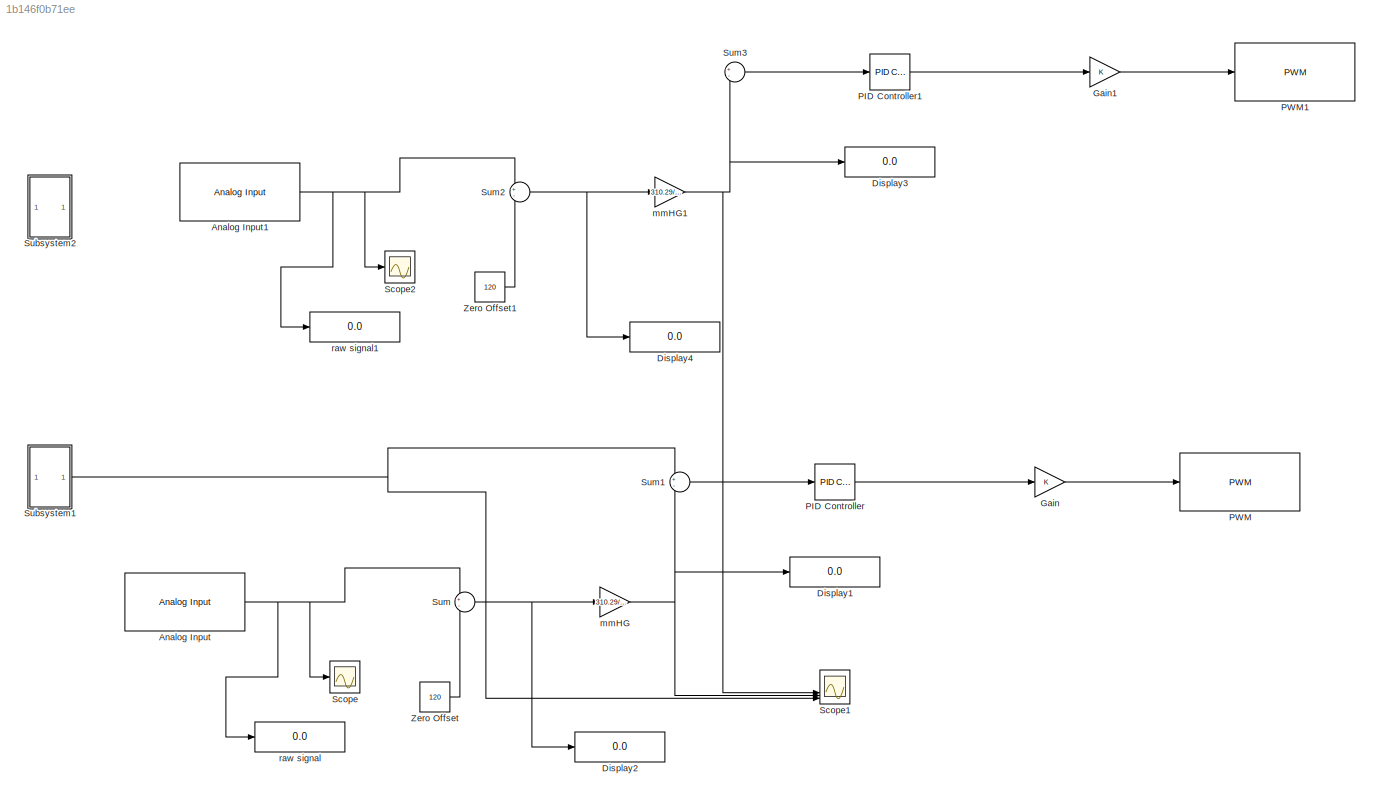
MODEL slx_1b146f0b71ee
KIND model
CONFIG AbsTol = auto
CONFIG EnableMultiTasking = on
CONFIG FixedStep = auto
CONFIG MaxStep = auto
CONFIG MinStep = auto
CONFIG RelTol = 1e-3
CONFIG SampleTimeConstraint = Unconstrained
CONFIG SolverName = FixedStepAuto
CONFIG StartTime = 0.0
CONFIG StopTime = inf
BLOCK [Reference] Analog Input  REF=arduinolib/Analog Input
  SourceBlock = arduinolib/Analog Input
  SourceType = Arduino Analog Input
BLOCK [Reference] Analog Input1  REF=arduinolib/Analog Input
  Commented = on
  SourceBlock = arduinolib/Analog Input
  SourceType = Arduino Analog Input
BLOCK [Display] Display1
  Decimation = 1
BLOCK [Display] Display2
  Decimation = 1
BLOCK [Display] Display3
  Commented = on
  Decimation = 1
BLOCK [Display] Display4
  Commented = on
  Decimation = 1
BLOCK [Gain] Gain
BLOCK [Gain] Gain1
  Commented = on
BLOCK [Reference] PID Controller  REF=slpidlib/PID Controller
  SourceBlock = slpidlib/PID Controller
  SourceType = PID 1dof
BLOCK [Reference] PID Controller1  REF=slpidlib/PID Controller
  Commented = on
  SourceBlock = slpidlib/PID Controller
  SourceType = PID 1dof
BLOCK [Reference] PWM  REF=arduinolib/PWM
  SourceBlock = arduinolib/PWM
  SourceType = Arduino PWM
BLOCK [Reference] PWM1  REF=arduinolib/PWM
  Commented = on
  SourceBlock = arduinolib/PWM
  SourceType = Arduino PWM
BLOCK [Scope] Scope
  Floating = off
  NumInputPorts = 1
  ScopeSpecificationString = Simulink.scopes.TimeScopeBlockCfg('CurrentConfiguration', extmgr.ConfigurationSet(extmgr.Configuration('Core','General UI',true),extmgr.Configuration('Core','Source UI',true),extmgr.Configuration('Sources','WiredSimulink',true),extmgr.Configuration('Visuals','Time Domain',true,'SerializedDisplays',{struct('MinYLimReal','-100','MaxYLimReal','1050','YLabelReal','','MinYLimMag','0.00000','MaxYLimMag'...<+1368ch>
BLOCK [Scope] Scope1
  Floating = off
  NumInputPorts = 5
  ScopeSpecificationString = Simulink.scopes.TimeScopeBlockCfg('CurrentConfiguration', extmgr.ConfigurationSet(extmgr.Configuration('Core','General UI',true),extmgr.Configuration('Core','Source UI',true),extmgr.Configuration('Sources','WiredSimulink',true,'DataLoggingVariableName','ScopeData1'),extmgr.Configuration('Visuals','Time Domain',true,'SerializedDisplays',{struct('MinYLimReal','-10','MaxYLimReal','200','YLabelReal','...<+1568ch>
BLOCK [Scope] Scope2
  Commented = on
  Floating = off
  NumInputPorts = 1
  ScopeSpecificationString = Simulink.scopes.TimeScopeBlockCfg('CurrentConfiguration', extmgr.ConfigurationSet(extmgr.Configuration('Core','General UI',true),extmgr.Configuration('Core','Source UI',true),extmgr.Configuration('Sources','WiredSimulink',true,'DataLoggingVariableName','ScopeData1'),extmgr.Configuration('Visuals','Time Domain',true,'SerializedDisplays',{struct('MinYLimReal','-100','MaxYLimReal','1050','YLabelReal'...<+1407ch>
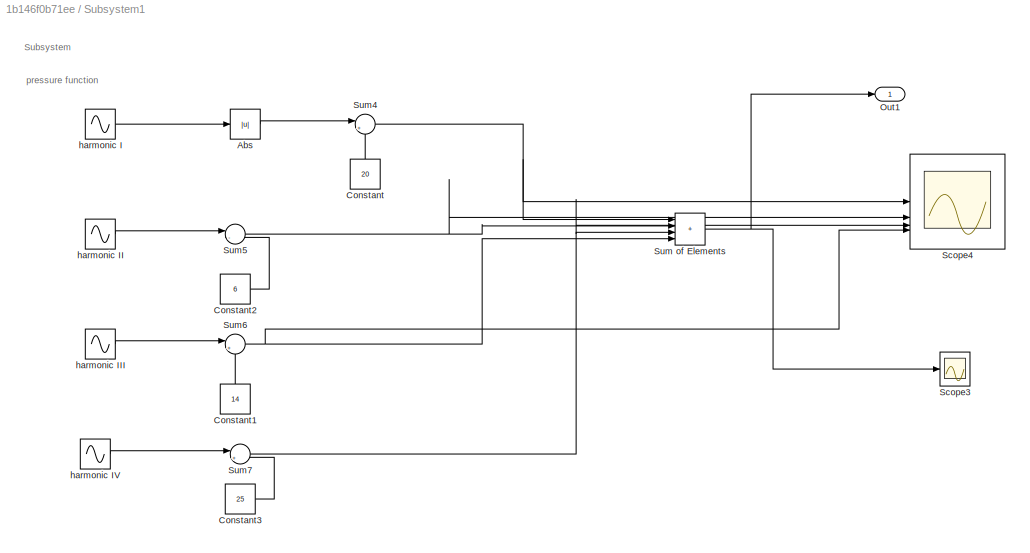
BLOCK [SubSystem] Subsystem1
BLOCK [Abs] Subsystem1/Abs
  SaturateOnIntegerOverflow = off
BLOCK [Constant] Subsystem1/Constant
  NameLocation = right
  Value = 20
BLOCK [Constant] Subsystem1/Constant1
  NameLocation = right
  Value = 14
BLOCK [Constant] Subsystem1/Constant2
  Value = 6
BLOCK [Constant] Subsystem1/Constant3
  Value = 25
BLOCK [Outport] Subsystem1/Out1
BLOCK [Scope] Subsystem1/Scope3
  Floating = off
  NumInputPorts = 1
  ScopeSpecificationString = Simulink.scopes.TimeScopeBlockCfg('CurrentConfiguration', extmgr.ConfigurationSet(extmgr.Configuration('Core','General UI',true),extmgr.Configuration('Core','Source UI',true),extmgr.Configuration('Sources','WiredSimulink',true,'DataLoggingVariableName','ScopeData1'),extmgr.Configuration('Visuals','Time Domain',true,'SerializedDisplays',{struct('MinYLimReal','57.25598','MaxYLimReal','93.63128','YLa...<+1454ch>
BLOCK [Scope] Subsystem1/Scope4
  Floating = off
  NumInputPorts = 4
  ScopeSpecificationString = Simulink.scopes.TimeScopeBlockCfg('CurrentConfiguration', extmgr.ConfigurationSet(extmgr.Configuration('Core','General UI',true),extmgr.Configuration('Core','Source UI',true),extmgr.Configuration('Sources','WiredSimulink',true,'DataLoggingVariableName','ScopeData2'),extmgr.Configuration('Visuals','Time Domain',true,'SerializedDisplays',{struct('MinYLimReal','-197.46527','MaxYLimReal','237.46714','...<+1490ch>
BLOCK [Sum] Subsystem1/Sum of Elements
  IconShape = rectangular
  Inputs = ++++
BLOCK [Sum] Subsystem1/Sum4
  Inputs = |++
BLOCK [Sum] Subsystem1/Sum5
  Inputs = |-+
BLOCK [Sum] Subsystem1/Sum6
  Inputs = |++
BLOCK [Sum] Subsystem1/Sum7
  Inputs = |++
BLOCK [Sin] Subsystem1/harmonic I
  Amplitude = 17
  Frequency = 3
  SampleTime = 0
  Samples = 0.01
BLOCK [Sin] Subsystem1/harmonic II
  Amplitude = 25
  Frequency = 6
  SampleTime = 0
BLOCK [Sin] Subsystem1/harmonic III
  Amplitude = 19
  Frequency = 6
  SampleTime = 0
BLOCK [Sin] Subsystem1/harmonic IV
  Amplitude = 20
  Frequency = 6
  Phase = pi/2
  SampleTime = 0
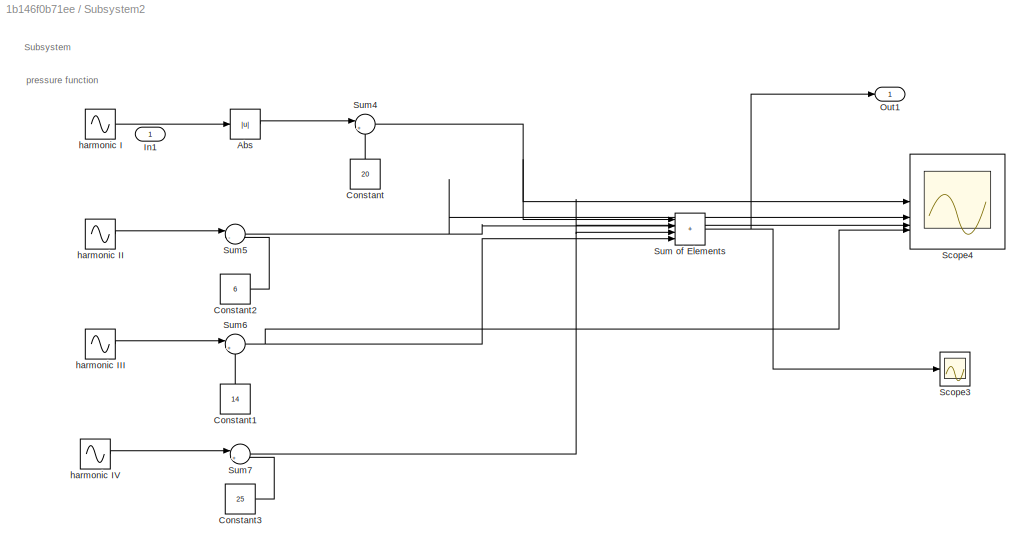
BLOCK [SubSystem] Subsystem2
  Commented = on
  PortSchema = {"entries":[{"content":{"sides":[{"content":{"connectorIds":[]},"type":"ConnectorPlacement.EquallySpacedRectSide","uuid":"ab7dab5f-f2a7-4876-b378-94c43efc8b1c"},{"content":{"connectorIds":["Out1"],"side":"RIGHT"},"type":"ConnectorPlacement.EquallySpacedRectSide","uuid":"1510920c-72ba-4a1a-b332-ed7ffbc7a020"},{"content":{"connectorIds":["In1"],"side":"TOP"},"type":"ConnectorPlacement.EquallySpacedR...<+240ch>
BLOCK [Abs] Subsystem2/Abs
  SaturateOnIntegerOverflow = off
BLOCK [Constant] Subsystem2/Constant
  NameLocation = right
  Value = 20
BLOCK [Constant] Subsystem2/Constant1
  NameLocation = right
  Value = 14
BLOCK [Constant] Subsystem2/Constant2
  Value = 6
BLOCK [Constant] Subsystem2/Constant3
  Value = 25
BLOCK [Inport] Subsystem2/In1
BLOCK [Outport] Subsystem2/Out1
BLOCK [Scope] Subsystem2/Scope3
  Floating = off
  NumInputPorts = 1
  ScopeSpecificationString = Simulink.scopes.TimeScopeBlockCfg('CurrentConfiguration', extmgr.ConfigurationSet(extmgr.Configuration('Core','General UI',true),extmgr.Configuration('Core','Source UI',true),extmgr.Configuration('Sources','WiredSimulink',true,'DataLoggingVariableName','ScopeData1'),extmgr.Configuration('Visuals','Time Domain',true,'SerializedDisplays',{struct('MinYLimReal','57.25598','MaxYLimReal','93.63128','YLa...<+1454ch>
BLOCK [Scope] Subsystem2/Scope4
  Floating = off
  NumInputPorts = 4
  ScopeSpecificationString = Simulink.scopes.TimeScopeBlockCfg('CurrentConfiguration', extmgr.ConfigurationSet(extmgr.Configuration('Core','General UI',true),extmgr.Configuration('Core','Source UI',true),extmgr.Configuration('Sources','WiredSimulink',true,'DataLoggingVariableName','ScopeData2'),extmgr.Configuration('Visuals','Time Domain',true,'SerializedDisplays',{struct('MinYLimReal','-197.46527','MaxYLimReal','237.46714','...<+1490ch>
BLOCK [Sum] Subsystem2/Sum of Elements
  IconShape = rectangular
  Inputs = ++++
BLOCK [Sum] Subsystem2/Sum4
  Inputs = |++
BLOCK [Sum] Subsystem2/Sum5
  Inputs = |-+
BLOCK [Sum] Subsystem2/Sum6
  Inputs = |++
BLOCK [Sum] Subsystem2/Sum7
  Inputs = |++
BLOCK [Sin] Subsystem2/harmonic I
  Amplitude = 17
  Frequency = 3
  SampleTime = 0
  Samples = 0.01
BLOCK [Sin] Subsystem2/harmonic II
  Amplitude = 25
  Frequency = 6
  SampleTime = 0
BLOCK [Sin] Subsystem2/harmonic III
  Amplitude = 19
  Frequency = 6
  SampleTime = 0
BLOCK [Sin] Subsystem2/harmonic IV
  Amplitude = 20
  Frequency = 6
  Phase = pi/2
  SampleTime = 0
BLOCK [Sum] Sum
  Inputs = +-
BLOCK [Sum] Sum1
  Inputs = +-
BLOCK [Sum] Sum2
  Commented = on
  Inputs = +-
BLOCK [Sum] Sum3
  Commented = on
  Inputs = +-
BLOCK [Constant] Zero Offset
  Value = 120
BLOCK [Constant] Zero Offset1
  Commented = on
  Value = 120
BLOCK [Gain] mmHG
  Gain = 310.29/905
BLOCK [Gain] mmHG1
  Commented = on
  Gain = 310.29/905
BLOCK [Display] raw signal
  Decimation = 1
BLOCK [Display] raw signal1
  Commented = on
  Decimation = 1
ANNOTATION Subsystem1: Subsystem
ANNOTATION Subsystem1: pressure function
ANNOTATION Subsystem2: Subsystem
ANNOTATION Subsystem2: pressure function
NET Analog Input1:1 -> Scope2:1, Sum2:1, raw signal1:1
NET Analog Input:1 -> Scope:1, Sum:1, raw signal:1
LINE Gain1:1 -> PWM1:1
LINE Gain:1 -> PWM:1
LINE PID Controller1:1 -> Gain1:1
LINE PID Controller:1 -> Gain:1
LINE Subsystem1/Abs:1 -> Subsystem1/Sum4:1
LINE Subsystem1/Constant1:1 -> Subsystem1/Sum6:2
LINE Subsystem1/Constant2:1 -> Subsystem1/Sum5:2
LINE Subsystem1/Constant3:1 -> Subsystem1/Sum7:2
LINE Subsystem1/Constant:1 -> Subsystem1/Sum4:2
NET Subsystem1/Sum of Elements:1 -> Subsystem1/Out1:1, Subsystem1/Scope3:1
NET Subsystem1/Sum4:1 -> Subsystem1/Scope4:1, Subsystem1/Sum of Elements:1
NET Subsystem1/Sum5:1 -> Subsystem1/Scope4:2, Subsystem1/Sum of Elements:2
NET Subsystem1/Sum6:1 -> Subsystem1/Scope4:4, Subsystem1/Sum of Elements:4
NET Subsystem1/Sum7:1 -> Subsystem1/Scope4:3, Subsystem1/Sum of Elements:3
LINE Subsystem1/harmonic I:1 -> Subsystem1/Abs:1
LINE Subsystem1/harmonic II:1 -> Subsystem1/Sum5:1
LINE Subsystem1/harmonic III:1 -> Subsystem1/Sum6:1
LINE Subsystem1/harmonic IV:1 -> Subsystem1/Sum7:1
NET Subsystem1:1 -> Scope1:5, Sum1:1
LINE Subsystem2/Abs:1 -> Subsystem2/Sum4:1
LINE Subsystem2/Constant1:1 -> Subsystem2/Sum6:2
LINE Subsystem2/Constant2:1 -> Subsystem2/Sum5:2
LINE Subsystem2/Constant3:1 -> Subsystem2/Sum7:2
LINE Subsystem2/Constant:1 -> Subsystem2/Sum4:2
NET Subsystem2/Sum of Elements:1 -> Subsystem2/Out1:1, Subsystem2/Scope3:1
NET Subsystem2/Sum4:1 -> Subsystem2/Scope4:1, Subsystem2/Sum of Elements:1
NET Subsystem2/Sum5:1 -> Subsystem2/Scope4:2, Subsystem2/Sum of Elements:2
NET Subsystem2/Sum6:1 -> Subsystem2/Scope4:4, Subsystem2/Sum of Elements:4
NET Subsystem2/Sum7:1 -> Subsystem2/Scope4:3, Subsystem2/Sum of Elements:3
LINE Subsystem2/harmonic I:1 -> Subsystem2/Abs:1
LINE Subsystem2/harmonic II:1 -> Subsystem2/Sum5:1
LINE Subsystem2/harmonic III:1 -> Subsystem2/Sum6:1
LINE Subsystem2/harmonic IV:1 -> Subsystem2/Sum7:1
LINE Sum1:1 -> PID Controller:1
NET Sum2:1 -> Display4:1, mmHG1:1
LINE Sum3:1 -> PID Controller1:1
NET Sum:1 -> Display2:1, mmHG:1
LINE Zero Offset1:1 -> Sum2:2
LINE Zero Offset:1 -> Sum:2
NET mmHG1:1 -> Display3:1, Scope1:2, Sum3:2
NET mmHG:1 -> Display1:1, Scope1:3, Sum1:2
note: NET lines group one-source signal fan-out (src -> all destinations, sorted); 1:1 wires keep LINE
